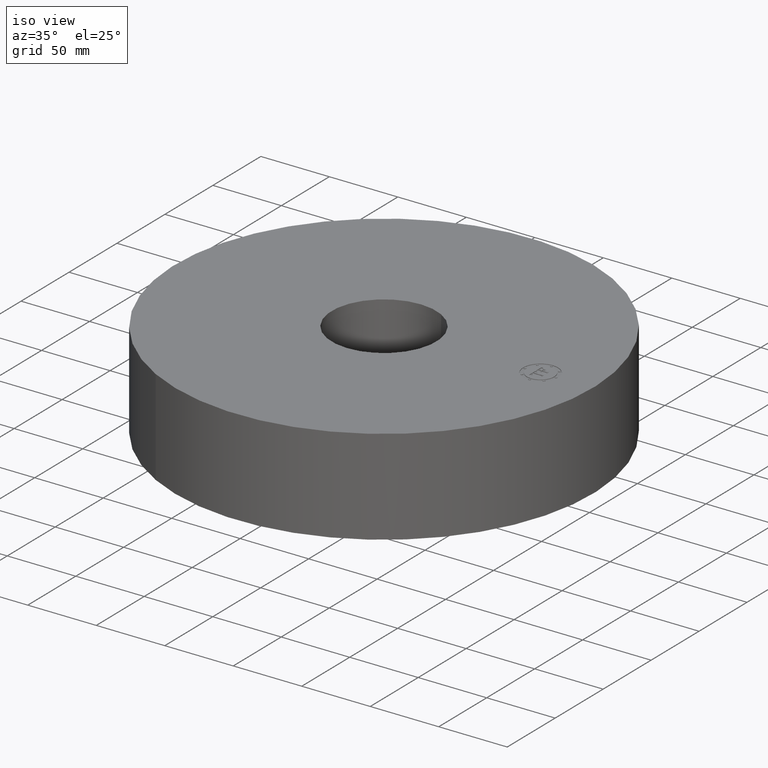
[diagram: clean part render]
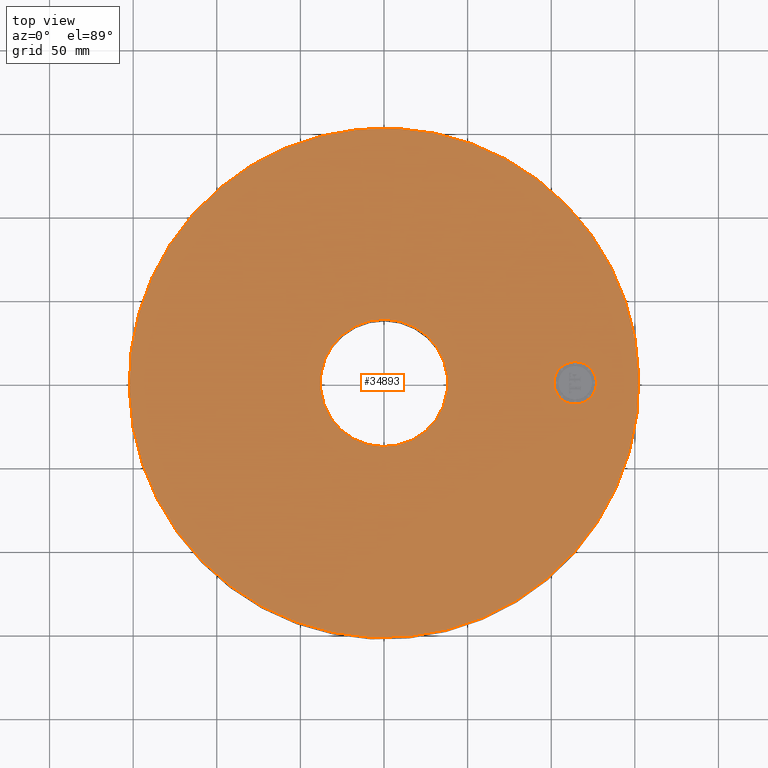
[diagram: tour spotlight — one face highlighted and labeled with its STEP entity id]
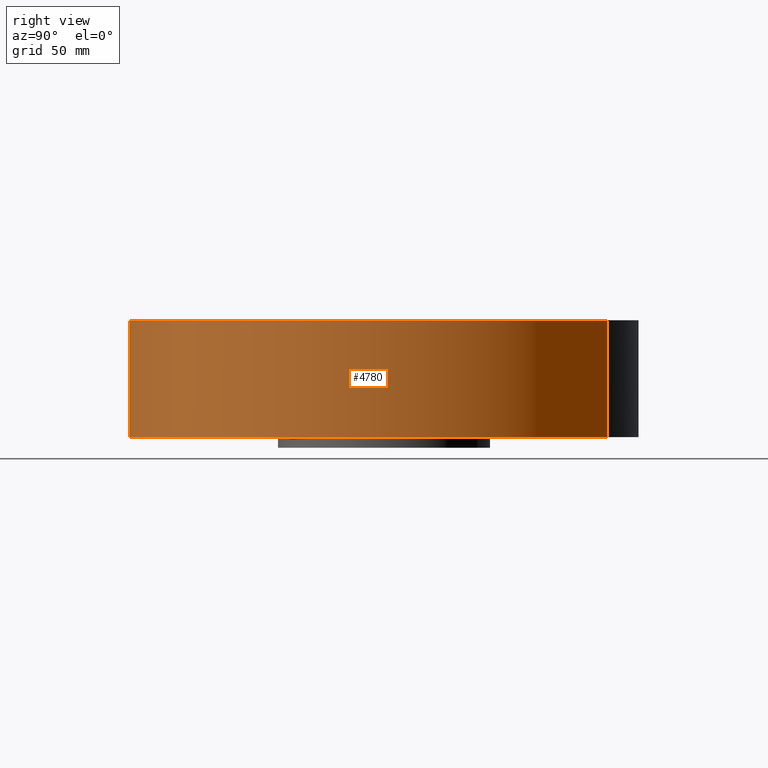
[diagram: tour spotlight — one face highlighted and labeled with its STEP entity id]
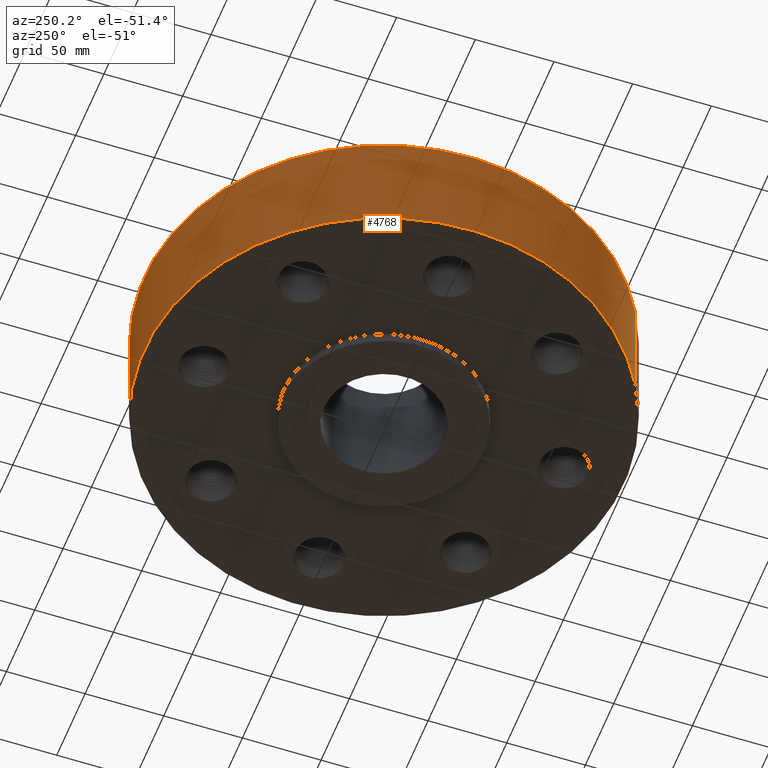
[diagram: tour spotlight — one face highlighted and labeled with its STEP entity id]
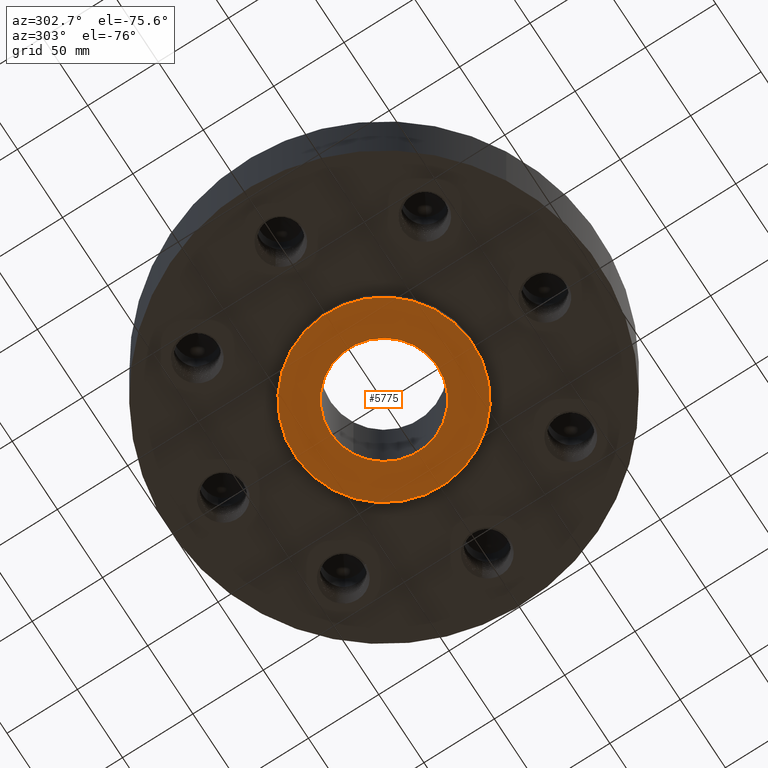
[diagram: tour spotlight — one face highlighted and labeled with its STEP entity id]
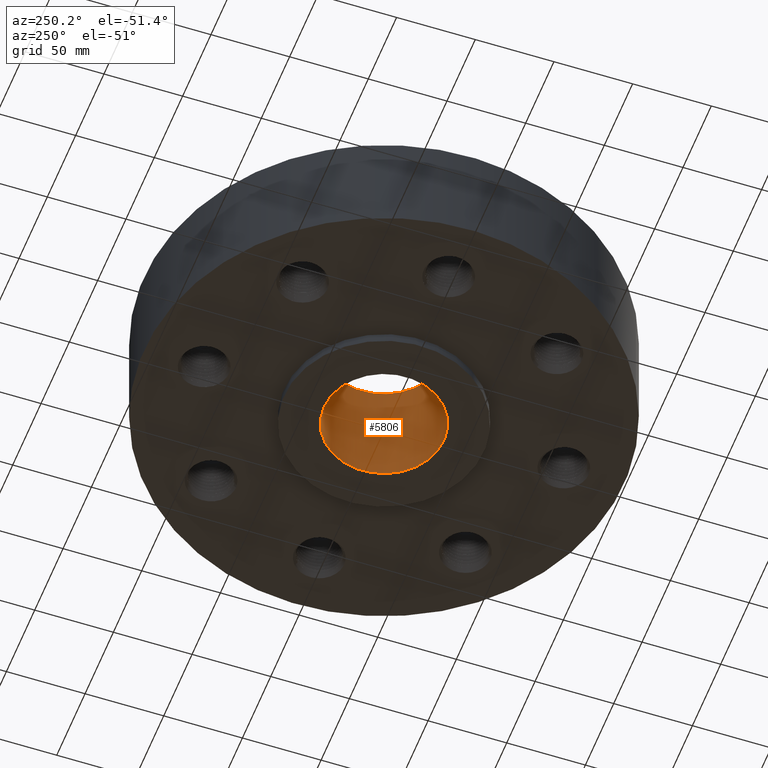
[diagram: tour spotlight — one face highlighted and labeled with its STEP entity id]
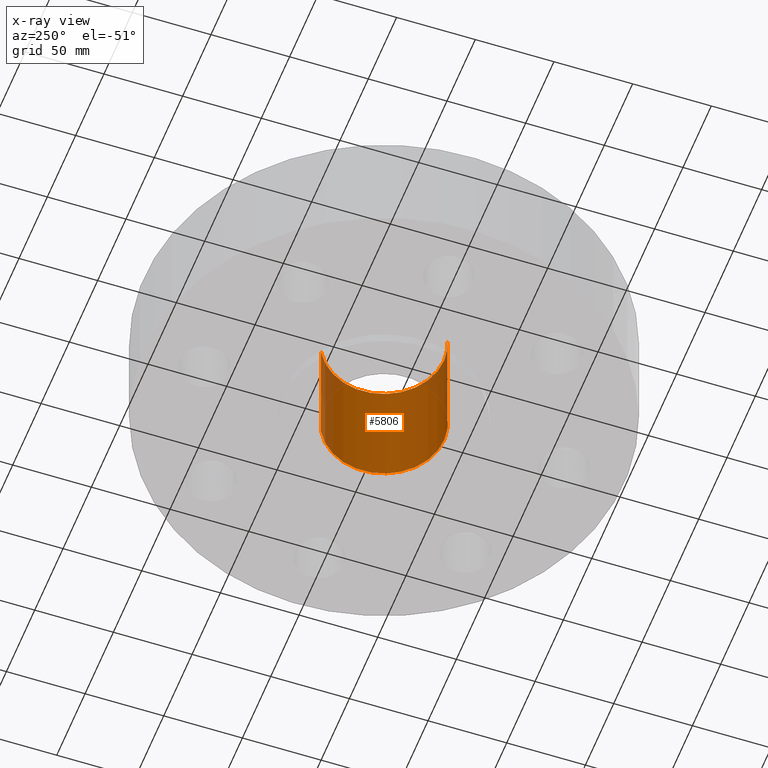
[diagram: x-ray of the same camera — body ghosted, this tour face saturated]
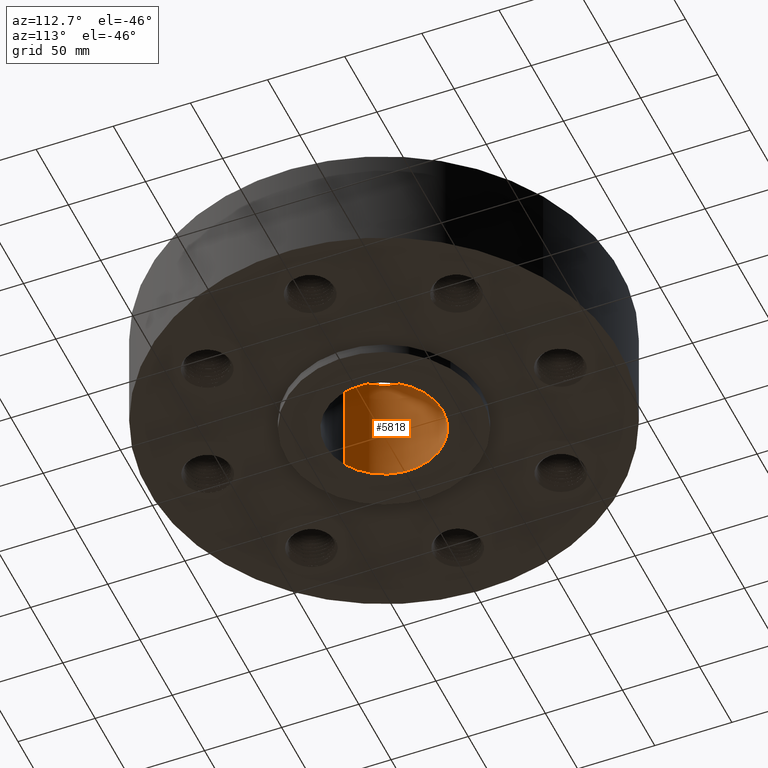
[diagram: tour spotlight — one face highlighted and labeled with its STEP entity id]
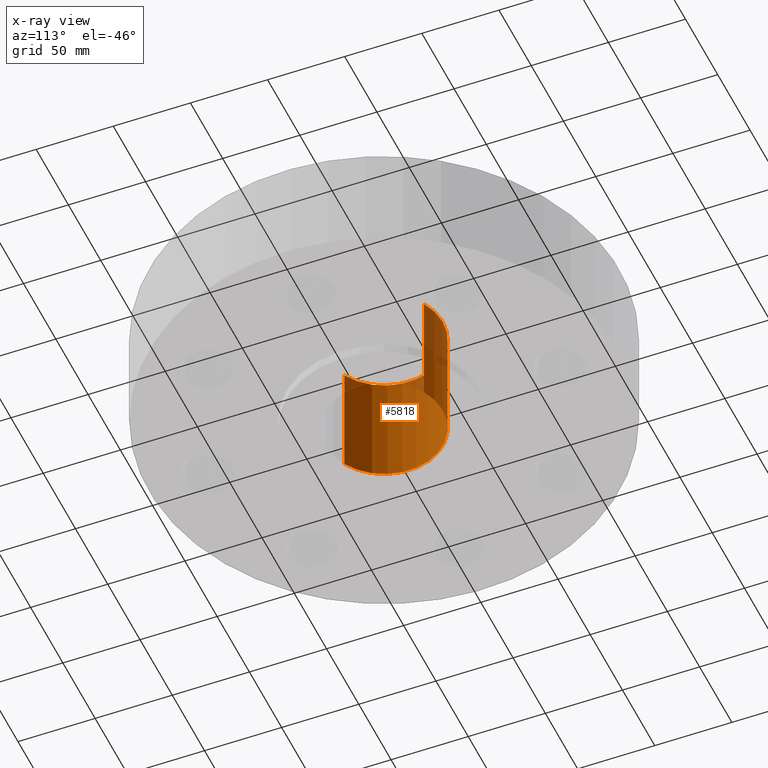
[diagram: x-ray of the same camera — body ghosted, this tour face saturated]
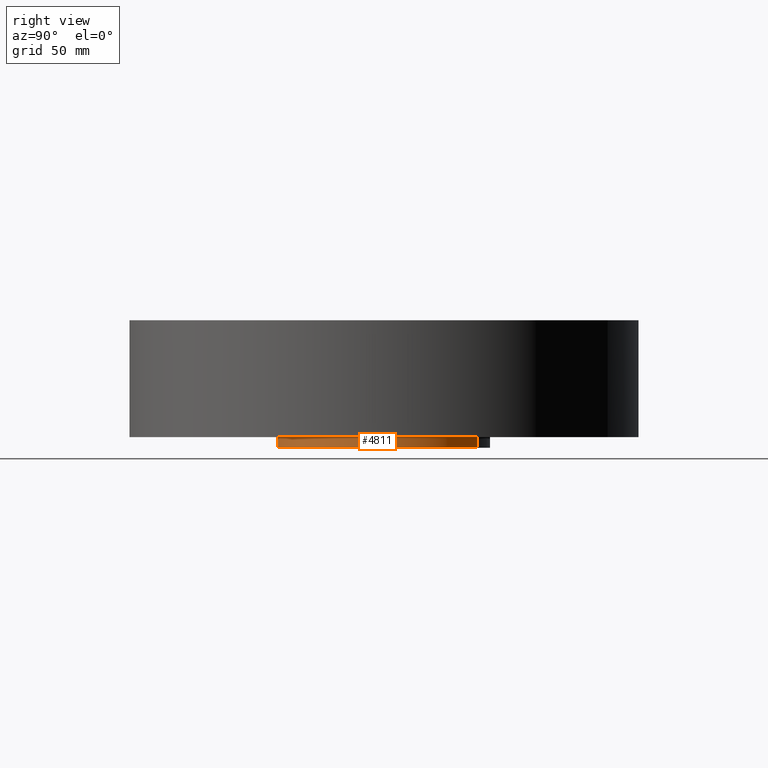
[diagram: tour spotlight — one face highlighted and labeled with its STEP entity id]
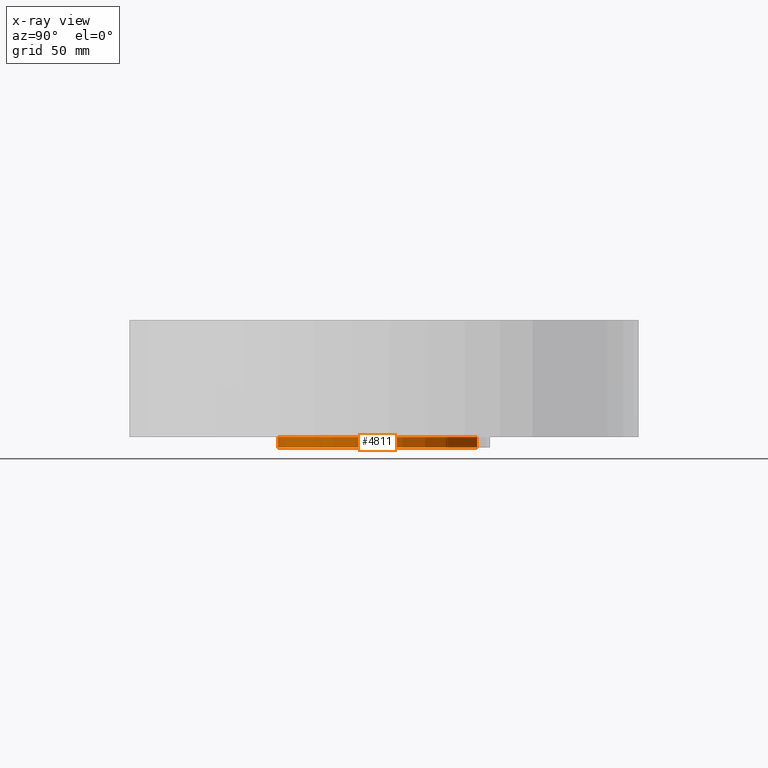
[diagram: x-ray of the same camera — body ghosted, this tour face saturated]
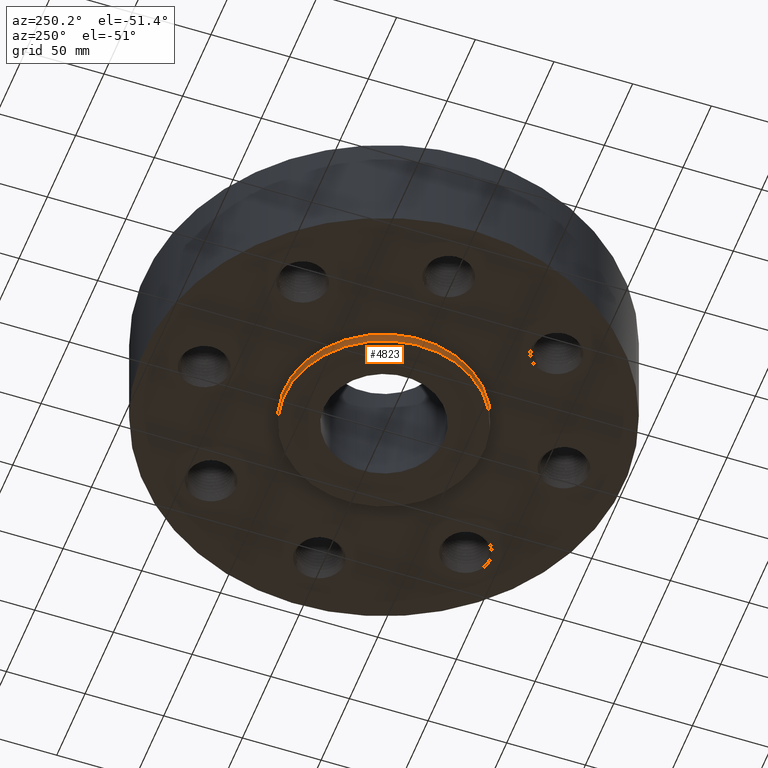
[diagram: tour spotlight — one face highlighted and labeled with its STEP entity id]
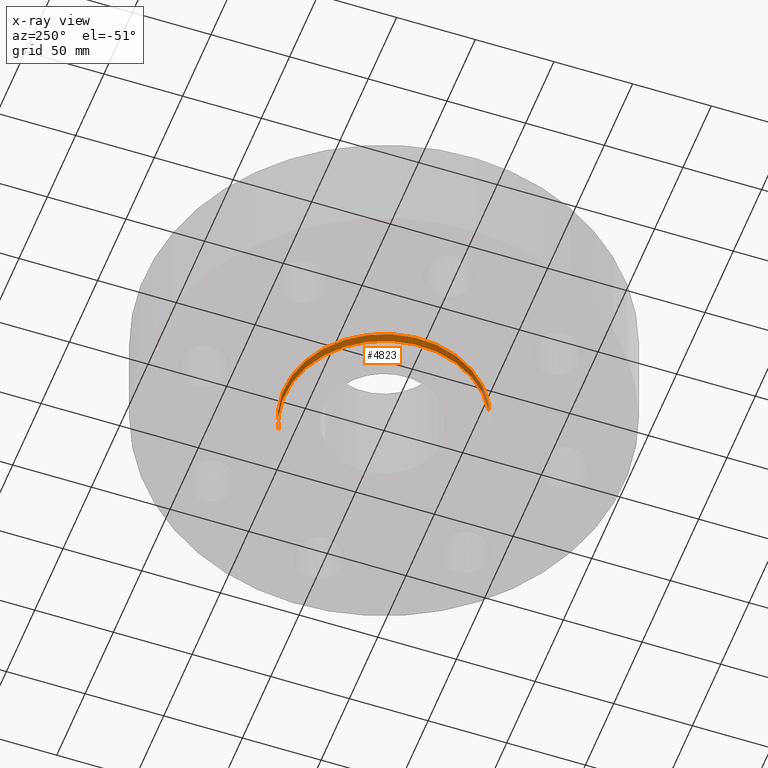
[diagram: x-ray of the same camera — body ghosted, this tour face saturated]
A machine part: a face-by-face anatomy tour. The part has 1018 B-rep faces; the first image is the clean iso view, then the 8 largest visible faces are spotlighted one at a time (largest first), each with its STEP entity span.

Face 1 — top view, entity #34893. In plain terms, the highlighted planar face has unit normal (0, 0, -1).
Definition (entity closure, byte-faithful):
#4752=AXIS2_PLACEMENT_3D('Circle Axis2P3D',#4750,#4751,$) ;
#4771=AXIS2_PLACEMENT_3D('Circle Axis2P3D',#4769,#4770,$) ;
#5783=AXIS2_PLACEMENT_3D('Circle Axis2P3D',#5781,#5782,$) ;
#5809=AXIS2_PLACEMENT_3D('Circle Axis2P3D',#5807,#5808,$) ;
#34865=AXIS2_PLACEMENT_3D('Plane Axis2P3D',#34862,#34863,#34864) ;
#34877=AXIS2_PLACEMENT_3D('Circle Axis2P3D',#34875,#34876,$) ;
#34886=AXIS2_PLACEMENT_3D('Circle Axis2P3D',#34884,#34885,$) ;
#4747=CARTESIAN_POINT('Vertex',(-2.87655323164,-5.26549537136,2.75000000001)) ;
#4750=CARTESIAN_POINT('Axis2P3D Location',(0.,0.,2.75000000001)) ;
#4754=CARTESIAN_POINT('Vertex',(2.87655323164,5.26549537136,2.75000000001)) ;
#4769=CARTESIAN_POINT('Axis2P3D Location',(0.,0.,2.75000000001)) ;
#5781=CARTESIAN_POINT('Axis2P3D Location',(0.,0.,2.75000000001)) ;
#5785=CARTESIAN_POINT('Vertex',(0.719138307909,1.31637384284,2.75000000001)) ;
#5787=CARTESIAN_POINT('Vertex',(-0.719138307909,-1.31637384284,2.75000000001)) ;
#5807=CARTESIAN_POINT('Axis2P3D Location',(0.,0.,2.75000000001)) ;
#34862=CARTESIAN_POINT('Axis2P3D Location',(0.,1.50000000001,2.75000000001)) ;
#34875=CARTESIAN_POINT('Axis2P3D Location',(4.50000000002,0.,2.75000000001)) ;
#34879=CARTESIAN_POINT('Vertex',(4.50000000002,-0.499999995002,2.75000000001)) ;
#34881=CARTESIAN_POINT('Vertex',(4.50000000002,0.499999995002,2.75000000001)) ;
#34884=CARTESIAN_POINT('Axis2P3D Location',(4.50000000002,0.,2.75000000001)) ;
#4751=DIRECTION('Axis2P3D Direction',(0.,0.,-0.0393700787402)) ;
#4770=DIRECTION('Axis2P3D Direction',(0.,0.,-0.0393700787402)) ;
#5782=DIRECTION('Axis2P3D Direction',(0.,0.,-0.0393700787402)) ;
#5808=DIRECTION('Axis2P3D Direction',(0.,0.,-0.0393700787402)) ;
#34863=DIRECTION('Axis2P3D Direction',(0.,0.,-0.0393700787402)) ;
#34864=DIRECTION('Axis2P3D XDirection',(0.0393700787402,0.,0.)) ;
#34876=DIRECTION('Axis2P3D Direction',(0.,0.,-0.0393700787402)) ;
#34885=DIRECTION('Axis2P3D Direction',(0.,0.,-0.0393700787402)) ;
#34868=ORIENTED_EDGE('',*,*,#4773,.F.) ;
#34869=ORIENTED_EDGE('',*,*,#4756,.F.) ;
#34872=ORIENTED_EDGE('',*,*,#5811,.T.) ;
#34873=ORIENTED_EDGE('',*,*,#5789,.T.) ;
#34890=ORIENTED_EDGE('',*,*,#34883,.F.) ;
#34891=ORIENTED_EDGE('',*,*,#34888,.F.) ;
#34874=FACE_BOUND('',#34871,.T.) ;
#34892=FACE_BOUND('',#34889,.T.) ;
#34893=ADVANCED_FACE('PartBody',(#34870,#34874,#34892),#34866,.F.) ;
#4753=CIRCLE('generated circle',#4752,6.00000000002) ;
#4772=CIRCLE('generated circle',#4771,6.00000000002) ;
#5784=CIRCLE('generated circle',#5783,1.50000000001) ;
#5810=CIRCLE('generated circle',#5809,1.50000000001) ;
#34878=CIRCLE('generated circle',#34877,0.499999995002) ;
#34887=CIRCLE('generated circle',#34886,0.499999995002) ;
#4756=EDGE_CURVE('',#4748,#4755,#4753,.T.) ;
#4773=EDGE_CURVE('',#4755,#4748,#4772,.T.) ;
#5789=EDGE_CURVE('',#5786,#5788,#5784,.T.) ;
#5811=EDGE_CURVE('',#5788,#5786,#5810,.T.) ;
#34883=EDGE_CURVE('',#34880,#34882,#34878,.F.) ;
#34888=EDGE_CURVE('',#34882,#34880,#34887,.F.) ;
#34867=EDGE_LOOP('',(#34868,#34869)) ;
#34871=EDGE_LOOP('',(#34872,#34873)) ;
#34889=EDGE_LOOP('',(#34890,#34891)) ;
#34870=FACE_OUTER_BOUND('',#34867,.T.) ;
#34866=PLANE('',#34865) ;
#4748=VERTEX_POINT('',#4747) ;
#4755=VERTEX_POINT('',#4754) ;
#5786=VERTEX_POINT('',#5785) ;
#5788=VERTEX_POINT('',#5787) ;
#34880=VERTEX_POINT('',#34879) ;
#34882=VERTEX_POINT('',#34881) ;

Face 2 — right view, entity #4780. In plain terms, the highlighted cylindrical surface (partial cylindrical patch) has radius 152.4 mm, axis along (0, 0, -1).
Definition (entity closure, byte-faithful):
#4369=AXIS2_PLACEMENT_3D('Circle Axis2P3D',#4367,#4368,$) ;
#4741=AXIS2_PLACEMENT_3D('Cylinder Axis2P3D',#4738,#4739,#4740) ;
#4771=AXIS2_PLACEMENT_3D('Circle Axis2P3D',#4769,#4770,$) ;
#4362=CARTESIAN_POINT('Vertex',(-2.87655323164,-5.26549537136,-3.9583384689E-014)) ;
#4364=CARTESIAN_POINT('Vertex',(2.87655323164,5.26549537136,-3.9583384689E-014)) ;
#4367=CARTESIAN_POINT('Axis2P3D Location',(0.,0.,0.)) ;
#4738=CARTESIAN_POINT('Axis2P3D Location',(0.,0.,1.25000000001)) ;
#4743=CARTESIAN_POINT('Line Origine',(-2.87655323164,-5.26549537136,1.37500000001)) ;
#4747=CARTESIAN_POINT('Vertex',(-2.87655323164,-5.26549537136,2.75000000001)) ;
#4754=CARTESIAN_POINT('Vertex',(2.87655323164,5.26549537136,2.75000000001)) ;
#4757=CARTESIAN_POINT('Line Origine',(2.87655323164,5.26549537136,1.37500000001)) ;
#4769=CARTESIAN_POINT('Axis2P3D Location',(0.,0.,2.75000000001)) ;
#4368=DIRECTION('Axis2P3D Direction',(0.,0.,-0.0393700787402)) ;
#4739=DIRECTION('Axis2P3D Direction',(0.,0.,-0.0393700787402)) ;
#4740=DIRECTION('Axis2P3D XDirection',(0.0188750212049,0.0345504945626,0.)) ;
#4744=DIRECTION('Vector Direction',(0.,0.,-0.0393700787402)) ;
#4758=DIRECTION('Vector Direction',(0.,0.,-0.0393700787402)) ;
#4770=DIRECTION('Axis2P3D Direction',(0.,0.,-0.0393700787402)) ;
#4745=VECTOR('Line Direction',#4744,0.0393700787402) ;
#4759=VECTOR('Line Direction',#4758,0.0393700787402) ;
#4775=ORIENTED_EDGE('',*,*,#4371,.F.) ;
#4776=ORIENTED_EDGE('',*,*,#4761,.T.) ;
#4777=ORIENTED_EDGE('',*,*,#4773,.T.) ;
#4778=ORIENTED_EDGE('',*,*,#4749,.F.) ;
#4780=ADVANCED_FACE('PartBody',(#4779),#4742,.T.) ;
#4370=CIRCLE('generated circle',#4369,6.00000000002) ;
#4772=CIRCLE('generated circle',#4771,6.00000000002) ;
#4742=CYLINDRICAL_SURFACE('generated cylinder',#4741,6.00000000002) ;
#4371=EDGE_CURVE('',#4365,#4363,#4370,.T.) ;
#4749=EDGE_CURVE('',#4363,#4748,#4746,.F.) ;
#4761=EDGE_CURVE('',#4365,#4755,#4760,.F.) ;
#4773=EDGE_CURVE('',#4755,#4748,#4772,.T.) ;
#4774=EDGE_LOOP('',(#4775,#4776,#4777,#4778)) ;
#4779=FACE_OUTER_BOUND('',#4774,.T.) ;
#4746=LINE('Line',#4743,#4745) ;
#4760=LINE('Line',#4757,#4759) ;
#4363=VERTEX_POINT('',#4362) ;
#4365=VERTEX_POINT('',#4364) ;
#4748=VERTEX_POINT('',#4747) ;
#4755=VERTEX_POINT('',#4754) ;

Face 3 — auxiliary view, entity #4768. In plain terms, the highlighted cylindrical surface (partial cylindrical patch) has radius 152.4 mm, axis along (0, 0, -1).
Definition (entity closure, byte-faithful):
#4360=AXIS2_PLACEMENT_3D('Circle Axis2P3D',#4358,#4359,$) ;
#4741=AXIS2_PLACEMENT_3D('Cylinder Axis2P3D',#4738,#4739,#4740) ;
#4752=AXIS2_PLACEMENT_3D('Circle Axis2P3D',#4750,#4751,$) ;
#4358=CARTESIAN_POINT('Axis2P3D Location',(0.,0.,0.)) ;
#4362=CARTESIAN_POINT('Vertex',(-2.87655323164,-5.26549537136,-3.9583384689E-014)) ;
#4364=CARTESIAN_POINT('Vertex',(2.87655323164,5.26549537136,-3.9583384689E-014)) ;
#4738=CARTESIAN_POINT('Axis2P3D Location',(0.,0.,1.25000000001)) ;
#4743=CARTESIAN_POINT('Line Origine',(-2.87655323164,-5.26549537136,1.37500000001)) ;
#4747=CARTESIAN_POINT('Vertex',(-2.87655323164,-5.26549537136,2.75000000001)) ;
#4750=CARTESIAN_POINT('Axis2P3D Location',(0.,0.,2.75000000001)) ;
#4754=CARTESIAN_POINT('Vertex',(2.87655323164,5.26549537136,2.75000000001)) ;
#4757=CARTESIAN_POINT('Line Origine',(2.87655323164,5.26549537136,1.37500000001)) ;
#4359=DIRECTION('Axis2P3D Direction',(0.,0.,-0.0393700787402)) ;
#4739=DIRECTION('Axis2P3D Direction',(0.,0.,-0.0393700787402)) ;
#4740=DIRECTION('Axis2P3D XDirection',(0.0188750212049,0.0345504945626,0.)) ;
#4744=DIRECTION('Vector Direction',(0.,0.,-0.0393700787402)) ;
#4751=DIRECTION('Axis2P3D Direction',(0.,0.,-0.0393700787402)) ;
#4758=DIRECTION('Vector Direction',(0.,0.,-0.0393700787402)) ;
#4745=VECTOR('Line Direction',#4744,0.0393700787402) ;
#4759=VECTOR('Line Direction',#4758,0.0393700787402) ;
#4763=ORIENTED_EDGE('',*,*,#4366,.F.) ;
#4764=ORIENTED_EDGE('',*,*,#4749,.T.) ;
#4765=ORIENTED_EDGE('',*,*,#4756,.T.) ;
#4766=ORIENTED_EDGE('',*,*,#4761,.F.) ;
#4768=ADVANCED_FACE('PartBody',(#4767),#4742,.T.) ;
#4361=CIRCLE('generated circle',#4360,6.00000000002) ;
#4753=CIRCLE('generated circle',#4752,6.00000000002) ;
#4742=CYLINDRICAL_SURFACE('generated cylinder',#4741,6.00000000002) ;
#4366=EDGE_CURVE('',#4363,#4365,#4361,.T.) ;
#4749=EDGE_CURVE('',#4363,#4748,#4746,.F.) ;
#4756=EDGE_CURVE('',#4748,#4755,#4753,.T.) ;
#4761=EDGE_CURVE('',#4365,#4755,#4760,.F.) ;
#4762=EDGE_LOOP('',(#4763,#4764,#4765,#4766)) ;
#4767=FACE_OUTER_BOUND('',#4762,.T.) ;
#4746=LINE('Line',#4743,#4745) ;
#4760=LINE('Line',#4757,#4759) ;
#4363=VERTEX_POINT('',#4362) ;
#4365=VERTEX_POINT('',#4364) ;
#4748=VERTEX_POINT('',#4747) ;
#4755=VERTEX_POINT('',#4754) ;

Face 4 — auxiliary view, entity #5775. In plain terms, the highlighted planar face has unit normal (0, 0, -1).
Definition (entity closure, byte-faithful):
#4788=AXIS2_PLACEMENT_3D('Circle Axis2P3D',#4786,#4787,$) ;
#4814=AXIS2_PLACEMENT_3D('Circle Axis2P3D',#4812,#4813,$) ;
#5751=AXIS2_PLACEMENT_3D('Plane Axis2P3D',#5748,#5749,#5750) ;
#5759=AXIS2_PLACEMENT_3D('Circle Axis2P3D',#5757,#5758,$) ;
#5768=AXIS2_PLACEMENT_3D('Circle Axis2P3D',#5766,#5767,$) ;
#4786=CARTESIAN_POINT('Axis2P3D Location',(0.,0.,-0.250000000001)) ;
#4790=CARTESIAN_POINT('Vertex',(1.19856384652,2.19395640473,-0.250000000001)) ;
#4792=CARTESIAN_POINT('Vertex',(-1.19856384652,-2.19395640473,-0.250000000001)) ;
#4812=CARTESIAN_POINT('Axis2P3D Location',(0.,0.,-0.250000000001)) ;
#5748=CARTESIAN_POINT('Axis2P3D Location',(0.,2.50000000001,-0.250000000001)) ;
#5757=CARTESIAN_POINT('Axis2P3D Location',(0.,0.,-0.250000000001)) ;
#5761=CARTESIAN_POINT('Vertex',(0.719138307909,1.31637384284,-0.250000000001)) ;
#5763=CARTESIAN_POINT('Vertex',(-0.719138307909,-1.31637384284,-0.250000000001)) ;
#5766=CARTESIAN_POINT('Axis2P3D Location',(0.,0.,-0.250000000001)) ;
#4787=DIRECTION('Axis2P3D Direction',(0.,0.,-0.0393700787402)) ;
#4813=DIRECTION('Axis2P3D Direction',(0.,0.,-0.0393700787402)) ;
#5749=DIRECTION('Axis2P3D Direction',(0.,0.,-0.0393700787402)) ;
#5750=DIRECTION('Axis2P3D XDirection',(0.0393700787402,0.,0.)) ;
#5758=DIRECTION('Axis2P3D Direction',(0.,0.,-0.0393700787402)) ;
#5767=DIRECTION('Axis2P3D Direction',(0.,0.,-0.0393700787402)) ;
#5754=ORIENTED_EDGE('',*,*,#4816,.T.) ;
#5755=ORIENTED_EDGE('',*,*,#4794,.T.) ;
#5772=ORIENTED_EDGE('',*,*,#5765,.F.) ;
#5773=ORIENTED_EDGE('',*,*,#5770,.F.) ;
#5774=FACE_BOUND('',#5771,.T.) ;
#5775=ADVANCED_FACE('PartBody',(#5756,#5774),#5752,.T.) ;
#4789=CIRCLE('generated circle',#4788,2.50000000001) ;
#4815=CIRCLE('generated circle',#4814,2.50000000001) ;
#5760=CIRCLE('generated circle',#5759,1.50000000001) ;
#5769=CIRCLE('generated circle',#5768,1.50000000001) ;
#4794=EDGE_CURVE('',#4791,#4793,#4789,.T.) ;
#4816=EDGE_CURVE('',#4793,#4791,#4815,.T.) ;
#5765=EDGE_CURVE('',#5762,#5764,#5760,.T.) ;
#5770=EDGE_CURVE('',#5764,#5762,#5769,.T.) ;
#5753=EDGE_LOOP('',(#5754,#5755)) ;
#5771=EDGE_LOOP('',(#5772,#5773)) ;
#5756=FACE_OUTER_BOUND('',#5753,.T.) ;
#5752=PLANE('',#5751) ;
#4791=VERTEX_POINT('',#4790) ;
#4793=VERTEX_POINT('',#4792) ;
#5762=VERTEX_POINT('',#5761) ;
#5764=VERTEX_POINT('',#5763) ;

Face 5 — auxiliary view, entity #5806. An x-ray twin of the same camera follows (body ghosted, this face saturated) — the face is partly hidden behind the body. In plain terms, the highlighted cylindrical surface (partial cylindrical patch) has radius 38.1 mm, axis along (0, 0, -1).
Definition (entity closure, byte-faithful):
#5759=AXIS2_PLACEMENT_3D('Circle Axis2P3D',#5757,#5758,$) ;
#5779=AXIS2_PLACEMENT_3D('Cylinder Axis2P3D',#5776,#5777,#5778) ;
#5783=AXIS2_PLACEMENT_3D('Circle Axis2P3D',#5781,#5782,$) ;
#5757=CARTESIAN_POINT('Axis2P3D Location',(0.,0.,-0.250000000001)) ;
#5761=CARTESIAN_POINT('Vertex',(0.719138307909,1.31637384284,-0.250000000001)) ;
#5763=CARTESIAN_POINT('Vertex',(-0.719138307909,-1.31637384284,-0.250000000001)) ;
#5776=CARTESIAN_POINT('Axis2P3D Location',(0.,0.,1.25000000001)) ;
#5781=CARTESIAN_POINT('Axis2P3D Location',(0.,0.,2.75000000001)) ;
#5785=CARTESIAN_POINT('Vertex',(0.719138307909,1.31637384284,2.75000000001)) ;
#5787=CARTESIAN_POINT('Vertex',(-0.719138307909,-1.31637384284,2.75000000001)) ;
#5790=CARTESIAN_POINT('Line Origine',(0.719138307909,1.31637384284,1.25000000001)) ;
#5795=CARTESIAN_POINT('Line Origine',(-0.719138307909,-1.31637384284,1.25000000001)) ;
#5758=DIRECTION('Axis2P3D Direction',(0.,0.,-0.0393700787402)) ;
#5777=DIRECTION('Axis2P3D Direction',(0.,0.,-0.0393700787402)) ;
#5778=DIRECTION('Axis2P3D XDirection',(-0.0188750212049,-0.0345504945626,0.)) ;
#5782=DIRECTION('Axis2P3D Direction',(0.,0.,-0.0393700787402)) ;
#5791=DIRECTION('Vector Direction',(0.,0.,-0.0393700787402)) ;
#5796=DIRECTION('Vector Direction',(0.,0.,-0.0393700787402)) ;
#5792=VECTOR('Line Direction',#5791,0.0393700787402) ;
#5797=VECTOR('Line Direction',#5796,0.0393700787402) ;
#5801=ORIENTED_EDGE('',*,*,#5789,.F.) ;
#5802=ORIENTED_EDGE('',*,*,#5794,.T.) ;
#5803=ORIENTED_EDGE('',*,*,#5765,.T.) ;
#5804=ORIENTED_EDGE('',*,*,#5799,.F.) ;
#5806=ADVANCED_FACE('PartBody',(#5805),#5780,.F.) ;
#5760=CIRCLE('generated circle',#5759,1.50000000001) ;
#5784=CIRCLE('generated circle',#5783,1.50000000001) ;
#5780=CYLINDRICAL_SURFACE('generated cylinder',#5779,1.50000000001) ;
#5765=EDGE_CURVE('',#5762,#5764,#5760,.T.) ;
#5789=EDGE_CURVE('',#5786,#5788,#5784,.T.) ;
#5794=EDGE_CURVE('',#5786,#5762,#5793,.T.) ;
#5799=EDGE_CURVE('',#5788,#5764,#5798,.T.) ;
#5800=EDGE_LOOP('',(#5801,#5802,#5803,#5804)) ;
#5805=FACE_OUTER_BOUND('',#5800,.T.) ;
#5793=LINE('Line',#5790,#5792) ;
#5798=LINE('Line',#5795,#5797) ;
#5762=VERTEX_POINT('',#5761) ;
#5764=VERTEX_POINT('',#5763) ;
#5786=VERTEX_POINT('',#5785) ;
#5788=VERTEX_POINT('',#5787) ;

Face 6 — auxiliary view, entity #5818. An x-ray twin of the same camera follows (body ghosted, this face saturated) — the face is partly hidden behind the body. In plain terms, the highlighted cylindrical surface (partial cylindrical patch) has radius 38.1 mm, axis along (0, 0, -1).
Definition (entity closure, byte-faithful):
#5768=AXIS2_PLACEMENT_3D('Circle Axis2P3D',#5766,#5767,$) ;
#5779=AXIS2_PLACEMENT_3D('Cylinder Axis2P3D',#5776,#5777,#5778) ;
#5809=AXIS2_PLACEMENT_3D('Circle Axis2P3D',#5807,#5808,$) ;
#5761=CARTESIAN_POINT('Vertex',(0.719138307909,1.31637384284,-0.250000000001)) ;
#5763=CARTESIAN_POINT('Vertex',(-0.719138307909,-1.31637384284,-0.250000000001)) ;
#5766=CARTESIAN_POINT('Axis2P3D Location',(0.,0.,-0.250000000001)) ;
#5776=CARTESIAN_POINT('Axis2P3D Location',(0.,0.,1.25000000001)) ;
#5785=CARTESIAN_POINT('Vertex',(0.719138307909,1.31637384284,2.75000000001)) ;
#5787=CARTESIAN_POINT('Vertex',(-0.719138307909,-1.31637384284,2.75000000001)) ;
#5790=CARTESIAN_POINT('Line Origine',(0.719138307909,1.31637384284,1.25000000001)) ;
#5795=CARTESIAN_POINT('Line Origine',(-0.719138307909,-1.31637384284,1.25000000001)) ;
#5807=CARTESIAN_POINT('Axis2P3D Location',(0.,0.,2.75000000001)) ;
#5767=DIRECTION('Axis2P3D Direction',(0.,0.,-0.0393700787402)) ;
#5777=DIRECTION('Axis2P3D Direction',(0.,0.,-0.0393700787402)) ;
#5778=DIRECTION('Axis2P3D XDirection',(-0.0188750212049,-0.0345504945626,0.)) ;
#5791=DIRECTION('Vector Direction',(0.,0.,-0.0393700787402)) ;
#5796=DIRECTION('Vector Direction',(0.,0.,-0.0393700787402)) ;
#5808=DIRECTION('Axis2P3D Direction',(0.,0.,-0.0393700787402)) ;
#5792=VECTOR('Line Direction',#5791,0.0393700787402) ;
#5797=VECTOR('Line Direction',#5796,0.0393700787402) ;
#5813=ORIENTED_EDGE('',*,*,#5811,.F.) ;
#5814=ORIENTED_EDGE('',*,*,#5799,.T.) ;
#5815=ORIENTED_EDGE('',*,*,#5770,.T.) ;
#5816=ORIENTED_EDGE('',*,*,#5794,.F.) ;
#5818=ADVANCED_FACE('PartBody',(#5817),#5780,.F.) ;
#5769=CIRCLE('generated circle',#5768,1.50000000001) ;
#5810=CIRCLE('generated circle',#5809,1.50000000001) ;
#5780=CYLINDRICAL_SURFACE('generated cylinder',#5779,1.50000000001) ;
#5770=EDGE_CURVE('',#5764,#5762,#5769,.T.) ;
#5794=EDGE_CURVE('',#5786,#5762,#5793,.T.) ;
#5799=EDGE_CURVE('',#5788,#5764,#5798,.T.) ;
#5811=EDGE_CURVE('',#5788,#5786,#5810,.T.) ;
#5812=EDGE_LOOP('',(#5813,#5814,#5815,#5816)) ;
#5817=FACE_OUTER_BOUND('',#5812,.T.) ;
#5793=LINE('Line',#5790,#5792) ;
#5798=LINE('Line',#5795,#5797) ;
#5762=VERTEX_POINT('',#5761) ;
#5764=VERTEX_POINT('',#5763) ;
#5786=VERTEX_POINT('',#5785) ;
#5788=VERTEX_POINT('',#5787) ;

Face 7 — right view, entity #4811. An x-ray twin of the same camera follows (body ghosted, this face saturated) — the face is partly hidden behind the body. In plain terms, the highlighted cylindrical surface (partial cylindrical patch) has radius 63.5 mm, axis along (0, 0, -1).
Definition (entity closure, byte-faithful):
#4385=AXIS2_PLACEMENT_3D('Circle Axis2P3D',#4383,#4384,$) ;
#4784=AXIS2_PLACEMENT_3D('Cylinder Axis2P3D',#4781,#4782,#4783) ;
#4788=AXIS2_PLACEMENT_3D('Circle Axis2P3D',#4786,#4787,$) ;
#4383=CARTESIAN_POINT('Axis2P3D Location',(0.,0.,0.)) ;
#4387=CARTESIAN_POINT('Vertex',(1.19856384652,2.19395640473,-2.83937353069E-014)) ;
#4389=CARTESIAN_POINT('Vertex',(-1.19856384652,-2.19395640473,-2.83937353069E-014)) ;
#4781=CARTESIAN_POINT('Axis2P3D Location',(0.,0.,1.25000000001)) ;
#4786=CARTESIAN_POINT('Axis2P3D Location',(0.,0.,-0.250000000001)) ;
#4790=CARTESIAN_POINT('Vertex',(1.19856384652,2.19395640473,-0.250000000001)) ;
#4792=CARTESIAN_POINT('Vertex',(-1.19856384652,-2.19395640473,-0.250000000001)) ;
#4795=CARTESIAN_POINT('Line Origine',(1.19856384652,2.19395640473,-0.125000000001)) ;
#4800=CARTESIAN_POINT('Line Origine',(-1.19856384652,-2.19395640473,-0.125000000001)) ;
#4384=DIRECTION('Axis2P3D Direction',(0.,0.,-0.0393700787402)) ;
#4782=DIRECTION('Axis2P3D Direction',(0.,0.,-0.0393700787402)) ;
#4783=DIRECTION('Axis2P3D XDirection',(-0.0188750212049,-0.0345504945626,0.)) ;
#4787=DIRECTION('Axis2P3D Direction',(0.,0.,-0.0393700787402)) ;
#4796=DIRECTION('Vector Direction',(0.,0.,-0.0393700787402)) ;
#4801=DIRECTION('Vector Direction',(0.,0.,-0.0393700787402)) ;
#4797=VECTOR('Line Direction',#4796,0.0393700787402) ;
#4802=VECTOR('Line Direction',#4801,0.0393700787402) ;
#4806=ORIENTED_EDGE('',*,*,#4794,.F.) ;
#4807=ORIENTED_EDGE('',*,*,#4799,.T.) ;
#4808=ORIENTED_EDGE('',*,*,#4391,.T.) ;
#4809=ORIENTED_EDGE('',*,*,#4804,.F.) ;
#4811=ADVANCED_FACE('PartBody',(#4810),#4785,.T.) ;
#4386=CIRCLE('generated circle',#4385,2.50000000001) ;
#4789=CIRCLE('generated circle',#4788,2.50000000001) ;
#4785=CYLINDRICAL_SURFACE('generated cylinder',#4784,2.50000000001) ;
#4391=EDGE_CURVE('',#4388,#4390,#4386,.T.) ;
#4794=EDGE_CURVE('',#4791,#4793,#4789,.T.) ;
#4799=EDGE_CURVE('',#4791,#4388,#4798,.F.) ;
#4804=EDGE_CURVE('',#4793,#4390,#4803,.F.) ;
#4805=EDGE_LOOP('',(#4806,#4807,#4808,#4809)) ;
#4810=FACE_OUTER_BOUND('',#4805,.T.) ;
#4798=LINE('Line',#4795,#4797) ;
#4803=LINE('Line',#4800,#4802) ;
#4388=VERTEX_POINT('',#4387) ;
#4390=VERTEX_POINT('',#4389) ;
#4791=VERTEX_POINT('',#4790) ;
#4793=VERTEX_POINT('',#4792) ;

Face 8 — auxiliary view, entity #4823. An x-ray twin of the same camera follows (body ghosted, this face saturated) — the face is partly hidden behind the body. In plain terms, the highlighted cylindrical surface (partial cylindrical patch) has radius 63.5 mm, axis along (0, 0, -1).
Definition (entity closure, byte-faithful):
#4394=AXIS2_PLACEMENT_3D('Circle Axis2P3D',#4392,#4393,$) ;
#4784=AXIS2_PLACEMENT_3D('Cylinder Axis2P3D',#4781,#4782,#4783) ;
#4814=AXIS2_PLACEMENT_3D('Circle Axis2P3D',#4812,#4813,$) ;
#4387=CARTESIAN_POINT('Vertex',(1.19856384652,2.19395640473,-2.83937353069E-014)) ;
#4389=CARTESIAN_POINT('Vertex',(-1.19856384652,-2.19395640473,-2.83937353069E-014)) ;
#4392=CARTESIAN_POINT('Axis2P3D Location',(0.,0.,0.)) ;
#4781=CARTESIAN_POINT('Axis2P3D Location',(0.,0.,1.25000000001)) ;
#4790=CARTESIAN_POINT('Vertex',(1.19856384652,2.19395640473,-0.250000000001)) ;
#4792=CARTESIAN_POINT('Vertex',(-1.19856384652,-2.19395640473,-0.250000000001)) ;
#4795=CARTESIAN_POINT('Line Origine',(1.19856384652,2.19395640473,-0.125000000001)) ;
#4800=CARTESIAN_POINT('Line Origine',(-1.19856384652,-2.19395640473,-0.125000000001)) ;
#4812=CARTESIAN_POINT('Axis2P3D Location',(0.,0.,-0.250000000001)) ;
#4393=DIRECTION('Axis2P3D Direction',(0.,0.,-0.0393700787402)) ;
#4782=DIRECTION('Axis2P3D Direction',(0.,0.,-0.0393700787402)) ;
#4783=DIRECTION('Axis2P3D XDirection',(-0.0188750212049,-0.0345504945626,0.)) ;
#4796=DIRECTION('Vector Direction',(0.,0.,-0.0393700787402)) ;
#4801=DIRECTION('Vector Direction',(0.,0.,-0.0393700787402)) ;
#4813=DIRECTION('Axis2P3D Direction',(0.,0.,-0.0393700787402)) ;
#4797=VECTOR('Line Direction',#4796,0.0393700787402) ;
#4802=VECTOR('Line Direction',#4801,0.0393700787402) ;
#4818=ORIENTED_EDGE('',*,*,#4816,.F.) ;
#4819=ORIENTED_EDGE('',*,*,#4804,.T.) ;
#4820=ORIENTED_EDGE('',*,*,#4396,.T.) ;
#4821=ORIENTED_EDGE('',*,*,#4799,.F.) ;
#4823=ADVANCED_FACE('PartBody',(#4822),#4785,.T.) ;
#4395=CIRCLE('generated circle',#4394,2.50000000001) ;
#4815=CIRCLE('generated circle',#4814,2.50000000001) ;
#4785=CYLINDRICAL_SURFACE('generated cylinder',#4784,2.50000000001) ;
#4396=EDGE_CURVE('',#4390,#4388,#4395,.T.) ;
#4799=EDGE_CURVE('',#4791,#4388,#4798,.F.) ;
#4804=EDGE_CURVE('',#4793,#4390,#4803,.F.) ;
#4816=EDGE_CURVE('',#4793,#4791,#4815,.T.) ;
#4817=EDGE_LOOP('',(#4818,#4819,#4820,#4821)) ;
#4822=FACE_OUTER_BOUND('',#4817,.T.) ;
#4798=LINE('Line',#4795,#4797) ;
#4803=LINE('Line',#4800,#4802) ;
#4388=VERTEX_POINT('',#4387) ;
#4390=VERTEX_POINT('',#4389) ;
#4791=VERTEX_POINT('',#4790) ;
#4793=VERTEX_POINT('',#4792) ;